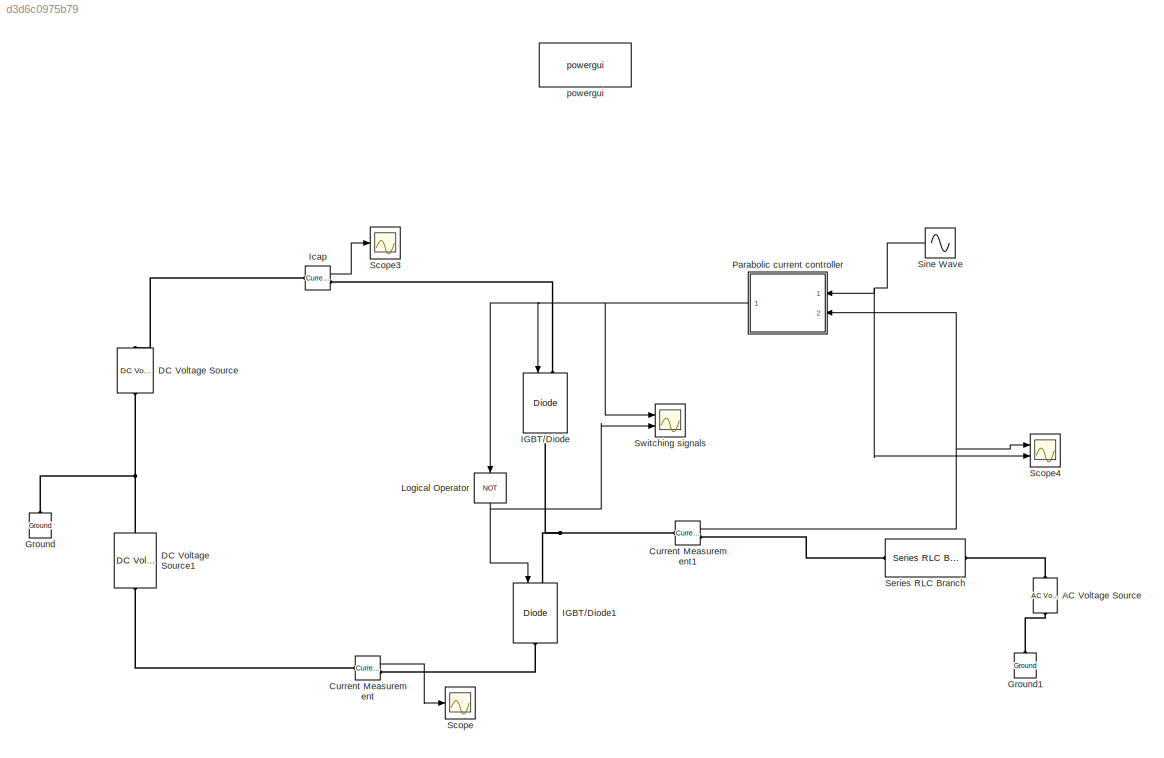
MODEL slx_d3d6c0975b79
KIND model
CONFIG AbsTol = auto
CONFIG EnableMultiTasking = on
CONFIG FixedStep = auto
CONFIG MaxStep = auto
CONFIG MinStep = auto
CONFIG RelTol = 1e-3
CONFIG SampleTimeConstraint = Unconstrained
CONFIG Solver = ode45
CONFIG SolverName = ode45
CONFIG StartTime = 0.0
CONFIG StopTime = .02
BLOCK [Reference] AC Voltage Source  REF=powerlib/Electrical
Sources/AC Voltage Source
  Ports = [0, 0, 0, 0, 0, 1, 1]
  SourceBlock = powerlib/Electrical\nSources/AC Voltage Source
  SourceProductBaseCode = PS
  SourceProductName = Simscape Power Systems
  SourceType = AC Voltage Source
BLOCK [Reference] Current Measurement  REF=powerlib/Measurements/Current Measurement
  Ports = [0, 1, 0, 0, 0, 1, 1]
  SourceBlock = powerlib/Measurements/Current Measurement
  SourceProductBaseCode = PS
  SourceProductName = Simscape Power Systems
  SourceType = Current Measurement
  UserDataPersistent = on
BLOCK [Reference] Current Measurement1  REF=powerlib/Measurements/Current Measurement
  Ports = [0, 1, 0, 0, 0, 1, 1]
  SourceBlock = powerlib/Measurements/Current Measurement
  SourceProductBaseCode = PS
  SourceProductName = Simscape Power Systems
  SourceType = Current Measurement
  UserDataPersistent = on
BLOCK [Reference] DC Voltage Source  REF=powerlib/Electrical
Sources/DC Voltage Source
  Ports = [0, 0, 0, 0, 0, 1, 1]
  SourceBlock = powerlib/Electrical\nSources/DC Voltage Source
  SourceProductBaseCode = PS
  SourceProductName = Simscape Power Systems
  SourceType = DC Voltage Source
BLOCK [Reference] DC Voltage Source1  REF=powerlib/Electrical
Sources/DC Voltage Source
  Ports = [0, 0, 0, 0, 0, 1, 1]
  SourceBlock = powerlib/Electrical\nSources/DC Voltage Source
  SourceProductBaseCode = PS
  SourceProductName = Simscape Power Systems
  SourceType = DC Voltage Source
BLOCK [Reference] Ground  REF=powerlib/Elements/Ground
  Ports = [0, 0, 0, 0, 0, 1]
  SourceBlock = powerlib/Elements/Ground
  SourceProductBaseCode = PS
  SourceProductName = Simscape Power Systems
  SourceType = Ground
BLOCK [Reference] Ground1  REF=powerlib/Elements/Ground
  Ports = [0, 0, 0, 0, 0, 1]
  SourceBlock = powerlib/Elements/Ground
  SourceProductBaseCode = PS
  SourceProductName = Simscape Power Systems
  SourceType = Ground
BLOCK [Reference] IGBT//Diode  REF=powerlib/Power
Electronics/IGBT//Diode
  Ports = [1, 0, 0, 0, 0, 1, 1]
  SourceBlock = powerlib/Power\nElectronics/IGBT//Diode
  SourceProductBaseCode = PS
  SourceProductName = Simscape Power Systems
  SourceType = IGBT/Diode
BLOCK [Reference] IGBT//Diode1  REF=powerlib/Power
Electronics/IGBT//Diode
  Ports = [1, 0, 0, 0, 0, 1, 1]
  SourceBlock = powerlib/Power\nElectronics/IGBT//Diode
  SourceProductBaseCode = PS
  SourceProductName = Simscape Power Systems
  SourceType = IGBT/Diode
BLOCK [Reference] Icap  REF=powerlib/Measurements/Current Measurement
  Ports = [0, 1, 0, 0, 0, 1, 1]
  SourceBlock = powerlib/Measurements/Current Measurement
  SourceProductBaseCode = PS
  SourceProductName = Simscape Power Systems
  SourceType = Current Measurement
  UserDataPersistent = on
BLOCK [Logic] Logical Operator
  AllPortsSameDT = off
  Operator = NOT
  OutDataTypeStr = boolean
  Ports = [1, 1]
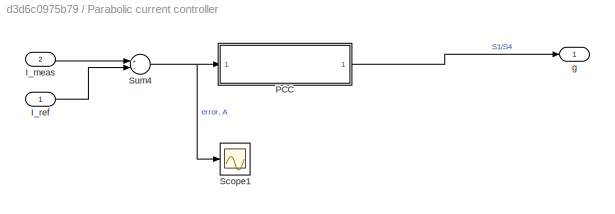
BLOCK [SubSystem] Parabolic current controller
  Ports = [2, 1]
  RequestExecContextInheritance = off
  Variant = off
BLOCK [Inport] Parabolic current controller/I_meas
  IconDisplay = Port number
  Port = 2
BLOCK [Inport] Parabolic current controller/I_ref
  IconDisplay = Port number
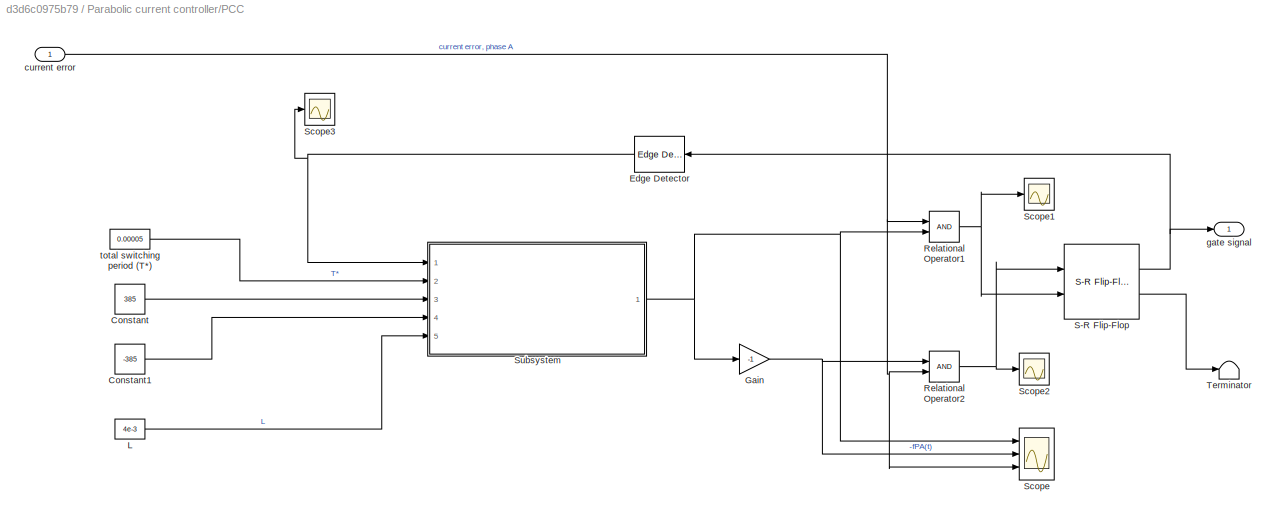
BLOCK [SubSystem] Parabolic current controller/PCC 
  Ports = [1, 1]
  RequestExecContextInheritance = off
  Variant = off
BLOCK [Constant] Parabolic current controller/PCC /Constant
  Value = 385
BLOCK [Constant] Parabolic current controller/PCC /Constant1
  Value = -385
BLOCK [Reference] Parabolic current controller/PCC /Edge Detector  REF=powerlib_meascontrol/Logic/Edge Detector
  Ports = [1, 1]
  SourceBlock = powerlib_meascontrol/Logic/Edge Detector
  SourceProductBaseCode = PS
  SourceProductName = Simscape Power Systems
  SourceType = Edge Detector
BLOCK [Gain] Parabolic current controller/PCC /Gain
  Gain = -1
  OutDataTypeStr = Inherit: Inherit via internal rule
  ParamDataTypeStr = Inherit: Inherit via internal rule
  SaturateOnIntegerOverflow = off
BLOCK [Constant] Parabolic current controller/PCC /L
  Value = 4e-3
BLOCK [RelationalOperator] Parabolic current controller/PCC /Relational Operator1
  InputSameDT = off
  OutDataTypeStr = boolean
  Ports = [2, 1]
  RndMeth = Simplest
  ZeroCross = off
BLOCK [RelationalOperator] Parabolic current controller/PCC /Relational Operator2
  InputSameDT = off
  OutDataTypeStr = boolean
  Ports = [2, 1]
  RndMeth = Simplest
  ZeroCross = off
BLOCK [Reference] Parabolic current controller/PCC /S-R Flip-Flop  REF=simulink_extras/Flip Flops/S-R
Flip-Flop
  Ports = [2, 2]
  SourceBlock = simulink_extras/Flip Flops/S-R\nFlip-Flop
  SourceProductBaseCode = SL
  SourceProductName = Simulink
  SourceType = SRFlipFlop
BLOCK [Scope] Parabolic current controller/PCC /Scope
  NumInputPorts = 3
  Ports = [3]
  ScopeSpecificationString = Simulink.scopes.TimeScopeBlockCfg('CurrentConfiguration', extmgr.ConfigurationSet(extmgr.Configuration('Core','General UI',true),extmgr.Configuration('Core','Source UI',true),extmgr.Configuration('Sources','WiredSimulink',true,'DataLoggingVariableName','ScopeData2'),extmgr.Configuration('Visuals','Time Domain',true,'SerializedDisplays',{struct('MinYLimReal','-0.00259','MaxYLimReal','0.00362','YLab...<+1572ch>
BLOCK [Scope] Parabolic current controller/PCC /Scope1
  NumInputPorts = 1
  Ports = [1]
  ScopeSpecificationString = Simulink.scopes.TimeScopeBlockCfg('CurrentConfiguration', extmgr.ConfigurationSet(extmgr.Configuration('Core','General UI',true),extmgr.Configuration('Core','Source UI',true),extmgr.Configuration('Sources','WiredSimulink',true,'DataLoggingVariableName','ScopeData2'),extmgr.Configuration('Visuals','Time Domain',true,'SerializedDisplays',{struct('MinYLimReal','-0.125','MaxYLimReal','1.125','YLabelRe...<+1367ch>
BLOCK [Scope] Parabolic current controller/PCC /Scope2
  NumInputPorts = 1
  Ports = [1]
  ScopeSpecificationString = Simulink.scopes.TimeScopeBlockCfg('CurrentConfiguration', extmgr.ConfigurationSet(extmgr.Configuration('Core','General UI',true),extmgr.Configuration('Core','Source UI',true),extmgr.Configuration('Sources','WiredSimulink',true,'DataLoggingVariableName','ScopeData3'),extmgr.Configuration('Visuals','Time Domain',true,'SerializedDisplays',{struct('MinYLimReal','-0.125','MaxYLimReal','1.125','YLabelRe...<+1367ch>
BLOCK [Scope] Parabolic current controller/PCC /Scope3
  NumInputPorts = 1
  Ports = [1]
  ScopeSpecificationString = Simulink.scopes.TimeScopeBlockCfg('CurrentConfiguration', extmgr.ConfigurationSet(extmgr.Configuration('Core','General UI',true),extmgr.Configuration('Core','Source UI',true),extmgr.Configuration('Sources','WiredSimulink',true,'DataLoggingVariableName','ScopeData1'),extmgr.Configuration('Visuals','Time Domain',true,'SerializedDisplays',{struct('MinYLimReal','-0.125','MaxYLimReal','1.125','YLabelRe...<+1457ch>
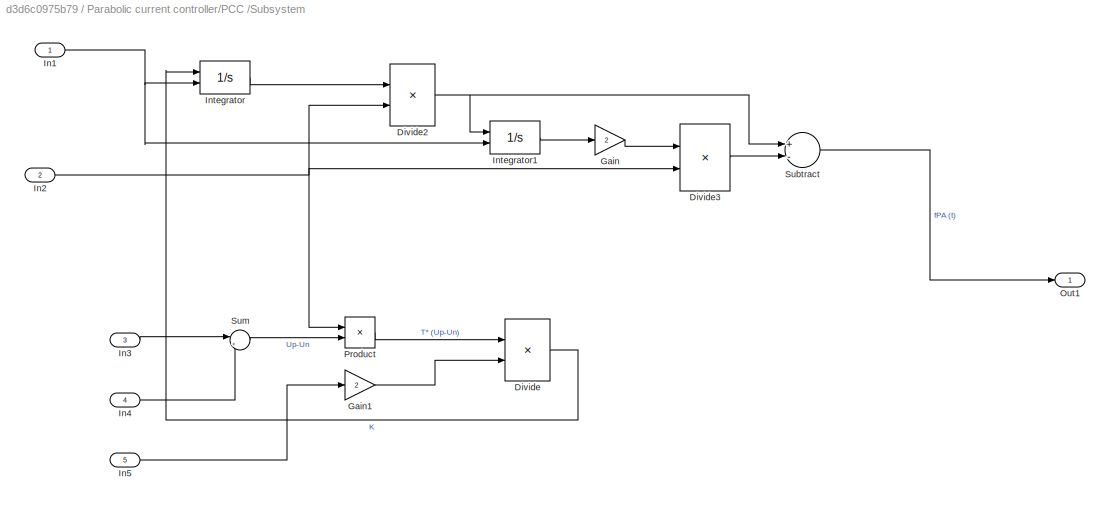
BLOCK [SubSystem] Parabolic current controller/PCC /Subsystem
  Ports = [5, 1]
  RequestExecContextInheritance = off
  Variant = off
BLOCK [Product] Parabolic current controller/PCC /Subsystem/Divide
  InputSameDT = off
  Inputs = */
  OutDataTypeStr = Inherit: Inherit via internal rule
  Ports = [2, 1]
  RndMeth = Floor
  SaturateOnIntegerOverflow = off
BLOCK [Product] Parabolic current controller/PCC /Subsystem/Divide2
  InputSameDT = off
  Inputs = */
  OutDataTypeStr = Inherit: Inherit via internal rule
  Ports = [2, 1]
  RndMeth = Floor
  SaturateOnIntegerOverflow = off
BLOCK [Product] Parabolic current controller/PCC /Subsystem/Divide3
  InputSameDT = off
  Inputs = */
  OutDataTypeStr = Inherit: Inherit via internal rule
  Ports = [2, 1]
  RndMeth = Floor
  SaturateOnIntegerOverflow = off
BLOCK [Gain] Parabolic current controller/PCC /Subsystem/Gain
  Gain = 2
  OutDataTypeStr = Inherit: Inherit via internal rule
  ParamDataTypeStr = Inherit: Inherit via internal rule
  SaturateOnIntegerOverflow = off
BLOCK [Gain] Parabolic current controller/PCC /Subsystem/Gain1
  Gain = 2
  OutDataTypeStr = Inherit: Inherit via internal rule
  ParamDataTypeStr = Inherit: Inherit via internal rule
  SaturateOnIntegerOverflow = off
BLOCK [Inport] Parabolic current controller/PCC /Subsystem/In1
  IconDisplay = Port number
BLOCK [Inport] Parabolic current controller/PCC /Subsystem/In2
  IconDisplay = Port number
  Port = 2
BLOCK [Inport] Parabolic current controller/PCC /Subsystem/In3
  IconDisplay = Port number
  Port = 3
BLOCK [Inport] Parabolic current controller/PCC /Subsystem/In4
  IconDisplay = Port number
  Port = 4
BLOCK [Inport] Parabolic current controller/PCC /Subsystem/In5
  IconDisplay = Port number
  Port = 5
BLOCK [Integrator] Parabolic current controller/PCC /Subsystem/Integrator
  ExternalReset = either
  Ports = [2, 1]
BLOCK [Integrator] Parabolic current controller/PCC /Subsystem/Integrator1
  ExternalReset = either
  Ports = [2, 1]
BLOCK [Outport] Parabolic current controller/PCC /Subsystem/Out1
  IconDisplay = Port number
BLOCK [Product] Parabolic current controller/PCC /Subsystem/Product
  InputSameDT = off
  OutDataTypeStr = Inherit: Inherit via internal rule
  Ports = [2, 1]
  RndMeth = Floor
  SaturateOnIntegerOverflow = off
BLOCK [Sum] Parabolic current controller/PCC /Subsystem/Subtract
  InputSameDT = off
  Inputs = +-
  OutDataTypeStr = Inherit: Inherit via internal rule
  Ports = [2, 1]
  SaturateOnIntegerOverflow = off
BLOCK [Sum] Parabolic current controller/PCC /Subsystem/Sum
  IconShape = round
  InputSameDT = off
  Inputs = |+-
  OutDataTypeStr = Inherit: Inherit via internal rule
  Ports = [2, 1]
  SaturateOnIntegerOverflow = off
BLOCK [Terminator] Parabolic current controller/PCC /Terminator
BLOCK [Inport] Parabolic current controller/PCC /current error
  IconDisplay = Port number
BLOCK [Outport] Parabolic current controller/PCC /gate signal
  IconDisplay = Port number
BLOCK [Constant] Parabolic current controller/PCC /total switching period (T*)
  Value = 0.00005
BLOCK [Scope] Parabolic current controller/Scope1
  NumInputPorts = 1
  Ports = [1]
  ScopeSpecificationString = Simulink.scopes.TimeScopeBlockCfg('CurrentConfiguration', extmgr.ConfigurationSet(extmgr.Configuration('Core','General UI',true),extmgr.Configuration('Core','Source UI',true),extmgr.Configuration('Sources','WiredSimulink',true,'DataLoggingVariableName','error_PCC','DataLogging',true,'DataLoggingSaveFormat','Array'),extmgr.Configuration('Visuals','Time Domain',true,'SerializedDisplays',{struct('Min...<+1509ch>
BLOCK [Sum] Parabolic current controller/Sum4
  InputSameDT = off
  Inputs = +-
  OutDataTypeStr = Inherit: Inherit via internal rule
  Ports = [2, 1]
  SaturateOnIntegerOverflow = off
BLOCK [Outport] Parabolic current controller/g
  IconDisplay = Port number
BLOCK [Scope] Scope
  NumInputPorts = 1
  Ports = [1]
  ScopeSpecificationString = Simulink.scopes.TimeScopeBlockCfg('CurrentConfiguration', extmgr.ConfigurationSet(extmgr.Configuration('Core','General UI',true),extmgr.Configuration('Core','Source UI',true),extmgr.Configuration('Sources','WiredSimulink',true,'DataLoggingVariableName','ScopeData1'),extmgr.Configuration('Visuals','Time Domain',true,'SerializedDisplays',{struct('MinYLimReal','-11.27863','MaxYLimReal','11.20738','YL...<+1384ch>
BLOCK [Scope] Scope3
  NumInputPorts = 1
  Ports = [1]
  ScopeSpecificationString = Simulink.scopes.TimeScopeBlockCfg('CurrentConfiguration', extmgr.ConfigurationSet(extmgr.Configuration('Core','General UI',true),extmgr.Configuration('Core','Source UI',true),extmgr.Configuration('Sources','WiredSimulink',true,'DataLoggingVariableName','ScopeData1'),extmgr.Configuration('Visuals','Time Domain',true,'SerializedDisplays',{struct('MinYLimReal','-11.21167','MaxYLimReal','11.27433','YL...<+1396ch>
BLOCK [Scope] Scope4
  NumInputPorts = 2
  Ports = [2]
  ScopeSpecificationString = Simulink.scopes.TimeScopeBlockCfg('CurrentConfiguration', extmgr.ConfigurationSet(extmgr.Configuration('Core','General UI',true),extmgr.Configuration('Core','Source UI',true),extmgr.Configuration('Sources','WiredSimulink',true,'DataLoggingVariableName','ScopeData6'),extmgr.Configuration('Visuals','Time Domain',true,'SerializedDisplays',{struct('MinYLimReal','-12.23544','MaxYLimReal','12.25081','YL...<+1493ch>
BLOCK [Reference] Series RLC Branch  REF=powerlib/Elements/Series RLC Branch
  Ports = [0, 0, 0, 0, 0, 1, 1]
  SourceBlock = powerlib/Elements/Series RLC Branch
  SourceProductBaseCode = PS
  SourceProductName = Simscape Power Systems
  SourceType = Series RLC Branch
BLOCK [Sin] Sine Wave
  Amplitude = 9
  Frequency = 314.16
  Ports = [0, 1]
  SampleTime = 0
BLOCK [Scope] Switching signals
  NumInputPorts = 2
  Ports = [2]
  ScopeSpecificationString = Simulink.scopes.TimeScopeBlockCfg('CurrentConfiguration', extmgr.ConfigurationSet(extmgr.Configuration('Core','General UI',true),extmgr.Configuration('Core','Source UI',true),extmgr.Configuration('Sources','WiredSimulink',true,'DataLoggingVariableName','switching_signal','DataLogging',true,'DataLoggingSaveFormat','StructureWithTime'),extmgr.Configuration('Visuals','Time Domain',true,'SerializedDis...<+2123ch>
BLOCK [Reference] powergui  REF=powerlib/powergui
  Ports = []
  Priority = 1
  SourceBlock = powerlib/powergui
  SourceProductBaseCode = PS
  SourceProductName = Simscape Power Systems
  SourceType = PSB option menu block
NET Current Measurement1:1 -> Parabolic current controller:2, Scope4:1
LINE Current Measurement:1 -> Scope:1
LINE Icap:1 -> Scope3:1
NET Logical Operator:1 -> IGBT//Diode1:1, Switching signals:2
LINE Parabolic current controller/I_meas:1 -> Parabolic current controller/Sum4:1
LINE Parabolic current controller/I_ref:1 -> Parabolic current controller/Sum4:2
LINE Parabolic current controller/PCC /Constant1:1 -> Parabolic current controller/PCC /Subsystem:4
LINE Parabolic current controller/PCC /Constant:1 -> Parabolic current controller/PCC /Subsystem:3
NET Parabolic current controller/PCC /Edge Detector:1 -> Parabolic current controller/PCC /Scope3:1, Parabolic current controller/PCC /Subsystem:1
NET Parabolic current controller/PCC /Gain:1 -> Parabolic current controller/PCC /Relational Operator2:1, Parabolic current controller/PCC /Scope:2
LINE Parabolic current controller/PCC /L:1 -> Parabolic current controller/PCC /Subsystem:5
NET Parabolic current controller/PCC /Relational Operator1:1 -> Parabolic current controller/PCC /S-R Flip-Flop:2, Parabolic current controller/PCC /Scope1:1
NET Parabolic current controller/PCC /Relational Operator2:1 -> Parabolic current controller/PCC /S-R Flip-Flop:1, Parabolic current controller/PCC /Scope2:1
NET Parabolic current controller/PCC /S-R Flip-Flop:1 -> Parabolic current controller/PCC /Edge Detector:1, Parabolic current controller/PCC /gate signal:1
LINE Parabolic current controller/PCC /S-R Flip-Flop:2 -> Parabolic current controller/PCC /Terminator:1
NET Parabolic current controller/PCC /Subsystem/Divide2:1 -> Parabolic current controller/PCC /Subsystem/Integrator1:1, Parabolic current controller/PCC /Subsystem/Subtract:1
LINE Parabolic current controller/PCC /Subsystem/Divide3:1 -> Parabolic current controller/PCC /Subsystem/Subtract:2
LINE Parabolic current controller/PCC /Subsystem/Divide:1 -> Parabolic current controller/PCC /Subsystem/Integrator:1
LINE Parabolic current controller/PCC /Subsystem/Gain1:1 -> Parabolic current controller/PCC /Subsystem/Divide:2
LINE Parabolic current controller/PCC /Subsystem/Gain:1 -> Parabolic current controller/PCC /Subsystem/Divide3:1
NET Parabolic current controller/PCC /Subsystem/In1:1 -> Parabolic current controller/PCC /Subsystem/Integrator1:2, Parabolic current controller/PCC /Subsystem/Integrator:2
NET Parabolic current controller/PCC /Subsystem/In2:1 -> Parabolic current controller/PCC /Subsystem/Divide2:2, Parabolic current controller/PCC /Subsystem/Divide3:2, Parabolic current controller/PCC /Subsystem/Product:1
LINE Parabolic current controller/PCC /Subsystem/In3:1 -> Parabolic current controller/PCC /Subsystem/Sum:1
LINE Parabolic current controller/PCC /Subsystem/In4:1 -> Parabolic current controller/PCC /Subsystem/Sum:2
LINE Parabolic current controller/PCC /Subsystem/In5:1 -> Parabolic current controller/PCC /Subsystem/Gain1:1
LINE Parabolic current controller/PCC /Subsystem/Integrator1:1 -> Parabolic current controller/PCC /Subsystem/Gain:1
LINE Parabolic current controller/PCC /Subsystem/Integrator:1 -> Parabolic current controller/PCC /Subsystem/Divide2:1
LINE Parabolic current controller/PCC /Subsystem/Product:1 -> Parabolic current controller/PCC /Subsystem/Divide:1
LINE Parabolic current controller/PCC /Subsystem/Subtract:1 -> Parabolic current controller/PCC /Subsystem/Out1:1
LINE Parabolic current controller/PCC /Subsystem/Sum:1 -> Parabolic current controller/PCC /Subsystem/Product:2
NET Parabolic current controller/PCC /Subsystem:1 -> Parabolic current controller/PCC /Gain:1, Parabolic current controller/PCC /Relational Operator1:2, Parabolic current controller/PCC /Scope:1
NET Parabolic current controller/PCC /current error:1 -> Parabolic current controller/PCC /Relational Operator1:1, Parabolic current controller/PCC /Relational Operator2:2, Parabolic current controller/PCC /Scope:3
LINE Parabolic current controller/PCC /total switching period (T*):1 -> Parabolic current controller/PCC /Subsystem:2
LINE Parabolic current controller/PCC :1 -> Parabolic current controller/g:1
NET Parabolic current controller/Sum4:1 -> Parabolic current controller/PCC :1, Parabolic current controller/Scope1:1
NET Parabolic current controller:1 -> IGBT//Diode:1, Logical Operator:1, Switching signals:1
NET Sine Wave:1 -> Parabolic current controller:1, Scope4:2
PLINE AC Voltage Source:LConn1 -- Ground1:LConn1
PLINE AC Voltage Source:RConn1 -- Series RLC Branch:RConn1
PNET net1: Current Measurement1:LConn1 -- IGBT//Diode1:LConn1 -- IGBT//Diode:RConn1
PLINE Current Measurement1:RConn1 -- Series RLC Branch:LConn1
PLINE Current Measurement:LConn1 -- DC Voltage Source1:LConn1
PLINE Current Measurement:RConn1 -- IGBT//Diode1:RConn1
PNET net2: DC Voltage Source1:RConn1 -- DC Voltage Source:LConn1 -- Ground:LConn1
PLINE DC Voltage Source:RConn1 -- Icap:LConn1
PLINE IGBT//Diode:LConn1 -- Icap:RConn1
note: NET lines group one-source signal fan-out (src -> all destinations, sorted); 1:1 wires keep LINE; PNET lines group multi-terminal physical nets as a canonical sorted terminal list (undirected conserving connections); 2-terminal nets keep the pairwise PLINE form
